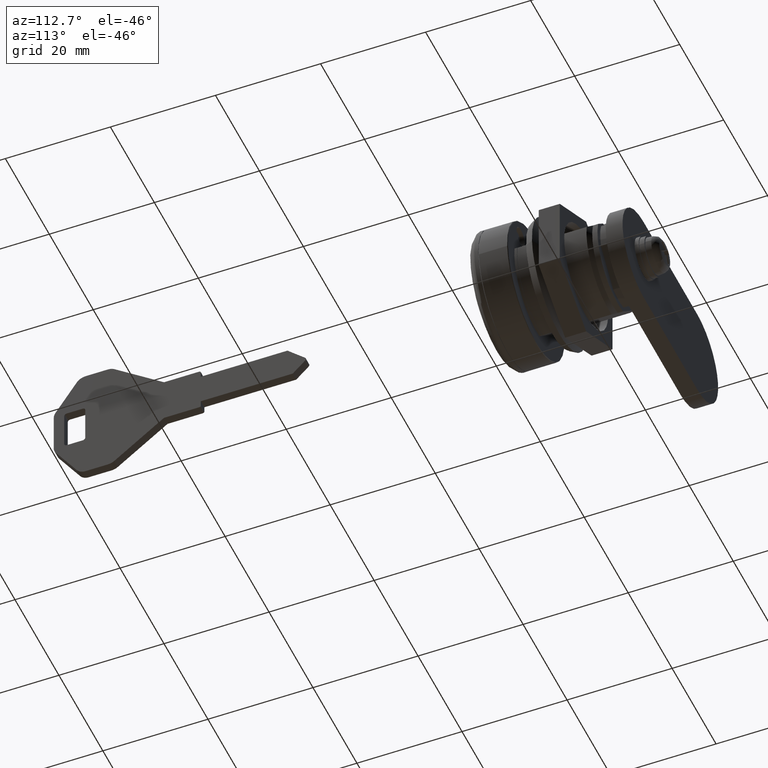
[diagram: clean part render]
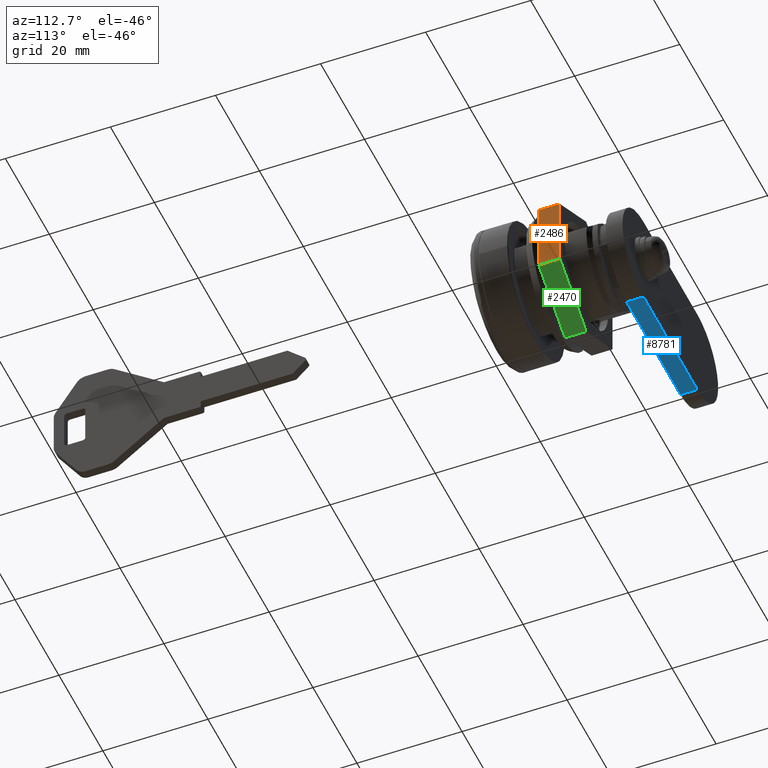
[diagram: same view with three faces highlighted in distinct colors, each labeled with its STEP entity id]
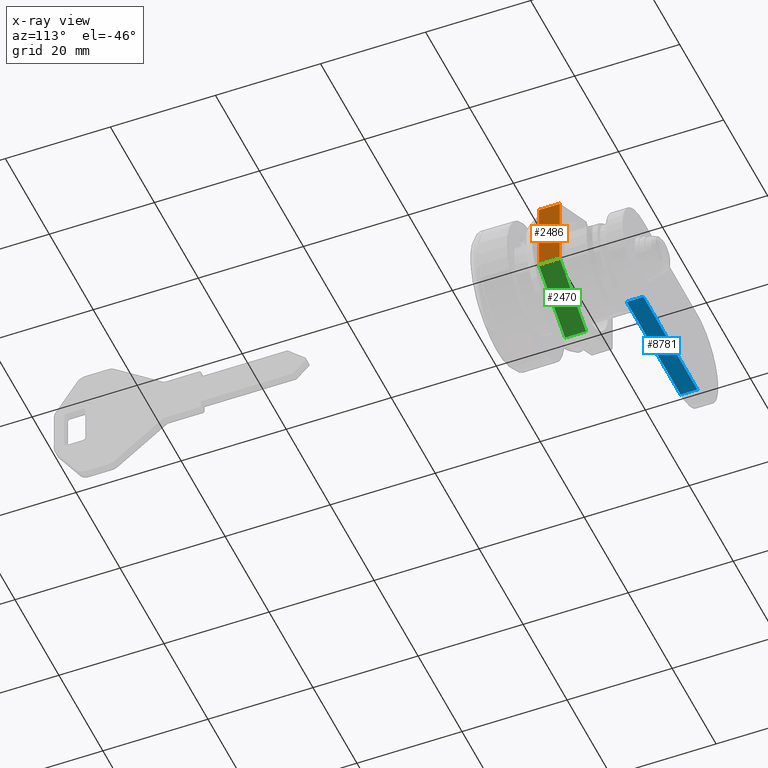
[diagram: x-ray of the same camera — body ghosted, the three highlighted faces saturated]
A machine part, auxiliary view with three faces highlighted in distinct colors.
The next image is the same camera in x-ray (body ghosted, the three faces saturated) — at least one of them is partly hidden behind the body in this view.
Their STEP definitions:

[orange] entity #2486 — the highlighted face is a freeform B-spline surface patch.
#2298=CARTESIAN_POINT('',(13.100000000000000,-12.0,6.928203499999990));
#2299=VERTEX_POINT('',#2298);
#2326=CARTESIAN_POINT('',(13.100000000000000,-12.0,-6.928203000000110));
#2327=VERTEX_POINT('',#2326);
#2333=CARTESIAN_POINT('',(13.100000000000000,-12.0,6.928203499999990));
#2334=CARTESIAN_POINT('',(13.100000000000000,-12.0,-6.928203000000110));
#2335=QUASI_UNIFORM_CURVE('',1,(#2333,#2334),.UNSPECIFIED.,.F.,.U.);
#2336=EDGE_CURVE('',#2299,#2327,#2335,.T.);
#2354=CARTESIAN_POINT('',(17.100000000000001,-12.0,6.928203499999990));
#2355=VERTEX_POINT('',#2354);
#2361=CARTESIAN_POINT('',(17.100000000000001,-12.0,-6.928203000000110));
#2362=VERTEX_POINT('',#2361);
#2363=CARTESIAN_POINT('',(17.100000000000001,-12.0,6.928203499999990));
#2364=CARTESIAN_POINT('',(17.100000000000001,-12.0,-6.928203000000110));
#2365=QUASI_UNIFORM_CURVE('',1,(#2363,#2364),.UNSPECIFIED.,.F.,.U.);
#2366=EDGE_CURVE('',#2355,#2362,#2365,.T.);
#2463=CARTESIAN_POINT('',(17.100000000000001,-12.0,-6.928203000000110));
#2464=CARTESIAN_POINT('',(13.100000000000000,-12.0,-6.928203000000110));
#2465=QUASI_UNIFORM_CURVE('',1,(#2463,#2464),.UNSPECIFIED.,.F.,.U.);
#2466=EDGE_CURVE('',#2362,#2327,#2465,.T.);
#2471=CARTESIAN_POINT('',(12.900200368953350,-12.0,-7.620330607892740));
#2472=CARTESIAN_POINT('',(12.900200368953350,-12.0,7.620331355664478));
#2473=CARTESIAN_POINT('',(17.299800382065179,-12.0,-7.620330607892740));
#2474=CARTESIAN_POINT('',(17.299800382065179,-12.0,7.620331355664478));
#2475=B_SPLINE_SURFACE_WITH_KNOTS('',1,1,((#2471,#2473),(#2472,#2474)),.UNSPECIFIED.,.F.,.F.,.U.,(2,2),(2,2),(0.0,15.240661963557219),(0.0,4.399600013111833),.UNSPECIFIED.);
#2476=ORIENTED_EDGE('',*,*,#2336,.T.);
#2477=ORIENTED_EDGE('',*,*,#2466,.F.);
#2478=ORIENTED_EDGE('',*,*,#2366,.F.);
#2479=CARTESIAN_POINT('',(17.100000000000001,-12.0,6.928203499999990));
#2480=CARTESIAN_POINT('',(13.100000000000000,-12.0,6.928203499999990));
#2481=QUASI_UNIFORM_CURVE('',1,(#2479,#2480),.UNSPECIFIED.,.F.,.U.);
#2482=EDGE_CURVE('',#2355,#2299,#2481,.T.);
#2483=ORIENTED_EDGE('',*,*,#2482,.T.);
#2484=EDGE_LOOP('',(#2476,#2477,#2478,#2483));
#2485=FACE_OUTER_BOUND('',#2484,.T.);
#2486=ADVANCED_FACE('',(#2485),#2475,.F.);

[blue] entity #8781 — the highlighted face is a freeform B-spline surface patch.
#8703=CARTESIAN_POINT('',(24.800000000000001,24.499999999990049,-9.500000000000000));
#8704=VERTEX_POINT('',#8703);
#8729=CARTESIAN_POINT('',(28.0,24.499999999990049,-9.500000000000000));
#8730=VERTEX_POINT('',#8729);
#8746=CARTESIAN_POINT('',(28.0,24.499999999990049,-9.500000000000000));
#8747=CARTESIAN_POINT('',(24.800000000000001,24.499999999990049,-9.500000000000000));
#8748=QUASI_UNIFORM_CURVE('',1,(#8746,#8747),.UNSPECIFIED.,.F.,.U.);
#8749=EDGE_CURVE('',#8730,#8704,#8748,.T.);
#8754=CARTESIAN_POINT('',(24.640159195140839,25.723774952503799,-9.500000000000000));
#8755=CARTESIAN_POINT('',(24.640159195140839,-1.223775609654959,-9.500000000000000));
#8756=CARTESIAN_POINT('',(28.159840118213658,25.723774952503799,-9.500000000000000));
#8757=CARTESIAN_POINT('',(28.159840118213658,-1.223775609654959,-9.500000000000000));
#8758=B_SPLINE_SURFACE_WITH_KNOTS('',1,1,((#8754,#8756),(#8755,#8757)),.UNSPECIFIED.,.F.,.F.,.U.,(2,2),(2,2),(0.0,26.947550562158760),(0.0,3.519680923072819),.UNSPECIFIED.);
#8759=CARTESIAN_POINT('',(24.800000000000001,-1.745064E-015,-9.500000000000000));
#8760=VERTEX_POINT('',#8759);
#8761=CARTESIAN_POINT('',(24.800000000000001,-1.745064E-015,-9.500000000000000));
#8762=CARTESIAN_POINT('',(24.800000000000001,24.499999999990049,-9.500000000000000));
#8763=QUASI_UNIFORM_CURVE('',1,(#8761,#8762),.UNSPECIFIED.,.F.,.U.);
#8764=EDGE_CURVE('',#8760,#8704,#8763,.T.);
#8765=ORIENTED_EDGE('',*,*,#8764,.T.);
#8766=ORIENTED_EDGE('',*,*,#8749,.F.);
#8767=CARTESIAN_POINT('',(28.0,-1.745064E-015,-9.500000000000000));
#8768=VERTEX_POINT('',#8767);
#8769=CARTESIAN_POINT('',(28.0,-1.745064E-015,-9.500000000000000));
#8770=CARTESIAN_POINT('',(28.0,24.499999999990049,-9.500000000000000));
#8771=QUASI_UNIFORM_CURVE('',1,(#8769,#8770),.UNSPECIFIED.,.F.,.U.);
#8772=EDGE_CURVE('',#8768,#8730,#8771,.T.);
#8773=ORIENTED_EDGE('',*,*,#8772,.F.);
#8774=CARTESIAN_POINT('',(28.0,-1.745064E-015,-9.500000000000000));
#8775=CARTESIAN_POINT('',(24.800000000000001,-1.745064E-015,-9.500000000000000));
#8776=QUASI_UNIFORM_CURVE('',1,(#8774,#8775),.UNSPECIFIED.,.F.,.U.);
#8777=EDGE_CURVE('',#8768,#8760,#8776,.T.);
#8778=ORIENTED_EDGE('',*,*,#8777,.T.);
#8779=EDGE_LOOP('',(#8765,#8766,#8773,#8778));
#8780=FACE_OUTER_BOUND('',#8779,.T.);
#8781=ADVANCED_FACE('',(#8780),#8758,.F.);

[green] entity #2470 — the highlighted face is a freeform B-spline surface patch.
#2319=CARTESIAN_POINT('',(13.100000000000000,0.0,-13.856406500000100));
#2320=VERTEX_POINT('',#2319);
#2326=CARTESIAN_POINT('',(13.100000000000000,-12.0,-6.928203000000110));
#2327=VERTEX_POINT('',#2326);
#2328=CARTESIAN_POINT('',(13.100000000000000,-12.0,-6.928203000000110));
#2329=CARTESIAN_POINT('',(13.100000000000000,0.0,-13.856406500000100));
#2330=QUASI_UNIFORM_CURVE('',1,(#2328,#2329),.UNSPECIFIED.,.F.,.U.);
#2331=EDGE_CURVE('',#2327,#2320,#2330,.T.);
#2361=CARTESIAN_POINT('',(17.100000000000001,-12.0,-6.928203000000110));
#2362=VERTEX_POINT('',#2361);
#2368=CARTESIAN_POINT('',(17.100000000000001,0.0,-13.856406500000100));
#2369=VERTEX_POINT('',#2368);
#2370=CARTESIAN_POINT('',(17.100000000000001,-12.0,-6.928203000000110));
#2371=CARTESIAN_POINT('',(17.100000000000001,0.0,-13.856406500000100));
#2372=QUASI_UNIFORM_CURVE('',1,(#2370,#2371),.UNSPECIFIED.,.F.,.U.);
#2373=EDGE_CURVE('',#2362,#2369,#2372,.T.);
#2447=CARTESIAN_POINT('',(17.100000000000001,0.0,-13.856406500000100));
#2448=CARTESIAN_POINT('',(13.100000000000000,0.0,-13.856406500000100));
#2449=QUASI_UNIFORM_CURVE('',1,(#2447,#2448),.UNSPECIFIED.,.F.,.U.);
#2450=EDGE_CURVE('',#2369,#2320,#2449,.T.);
#2455=CARTESIAN_POINT('',(12.900200368953350,0.599399864094255,-14.202470186359880));
#2456=CARTESIAN_POINT('',(12.900200368953350,-12.599400293247699,-6.582139065868468));
#2457=CARTESIAN_POINT('',(17.299800382065179,0.599399864094255,-14.202470186359880));
#2458=CARTESIAN_POINT('',(17.299800382065179,-12.599400293247699,-6.582139065868468));
#2459=B_SPLINE_SURFACE_WITH_KNOTS('',1,1,((#2455,#2457),(#2456,#2458)),.UNSPECIFIED.,.F.,.F.,.U.,(2,2),(2,2),(0.0,15.240661795977889),(0.0,4.399600013111833),.UNSPECIFIED.);
#2460=ORIENTED_EDGE('',*,*,#2331,.T.);
#2461=ORIENTED_EDGE('',*,*,#2450,.F.);
#2462=ORIENTED_EDGE('',*,*,#2373,.F.);
#2463=CARTESIAN_POINT('',(17.100000000000001,-12.0,-6.928203000000110));
#2464=CARTESIAN_POINT('',(13.100000000000000,-12.0,-6.928203000000110));
#2465=QUASI_UNIFORM_CURVE('',1,(#2463,#2464),.UNSPECIFIED.,.F.,.U.);
#2466=EDGE_CURVE('',#2362,#2327,#2465,.T.);
#2467=ORIENTED_EDGE('',*,*,#2466,.T.);
#2468=EDGE_LOOP('',(#2460,#2461,#2462,#2467));
#2469=FACE_OUTER_BOUND('',#2468,.T.);
#2470=ADVANCED_FACE('',(#2469),#2459,.F.);